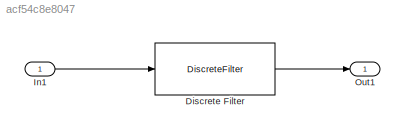
MODEL slx_acf54c8e8047
KIND model
CONFIG AbsTol = auto
CONFIG EnableMultiTasking = on
CONFIG FixedStep = 0.200000
CONFIG MaxStep = auto
CONFIG MinStep = auto
CONFIG RelTol = 1e-3
CONFIG SampleTimeConstraint = Unconstrained
CONFIG Solver = ode3
CONFIG SolverName = ode3
CONFIG StartTime = 0.0
CONFIG StopTime = 10.0
WORKSPACE source: MAT-file member
WORKSPACE A = [2 5 4 4]
BLOCK [DiscreteFilter] Discrete Filter
  Denominator = [4 5 6]
  InputPortMap = u0
  Numerator = [1  3 2 5]
  OutMax = 6
  OutMin = 2
  Ports = [1, 1]
BLOCK [Inport] In1
  IconDisplay = Port number
  PortDimensions = [2 3]
BLOCK [Outport] Out1
  IconDisplay = Port number
LINE Discrete Filter:1 -> Out1:1
LINE In1:1 -> Discrete Filter:1
